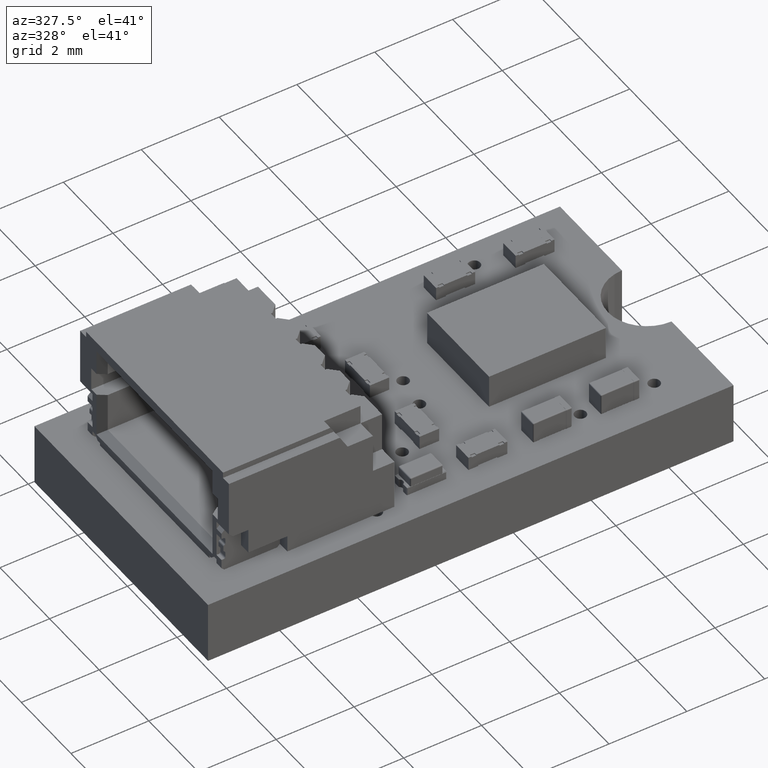
[diagram: clean part render]
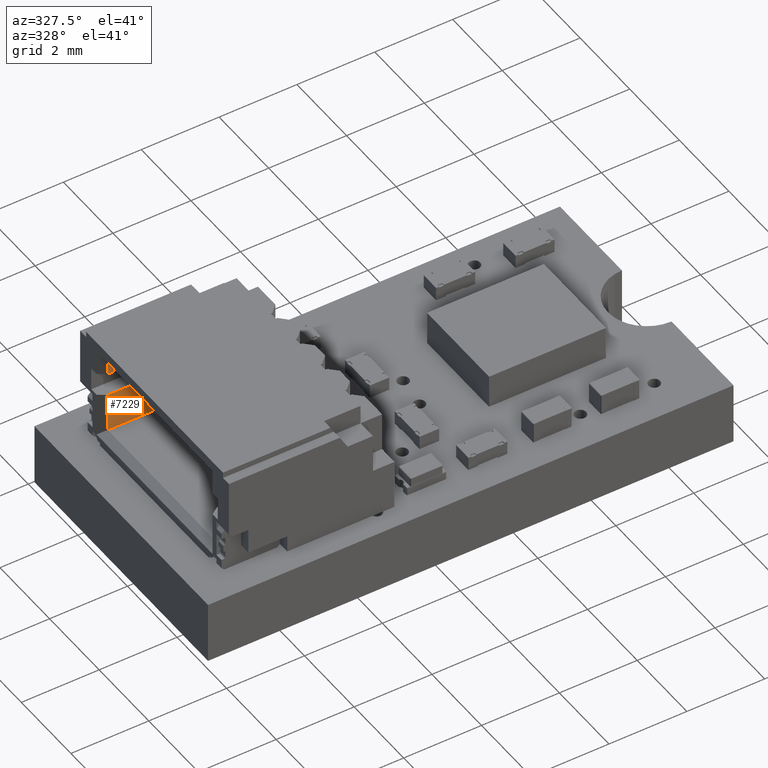
[diagram: same view with one face highlighted and labeled with its STEP entity id]
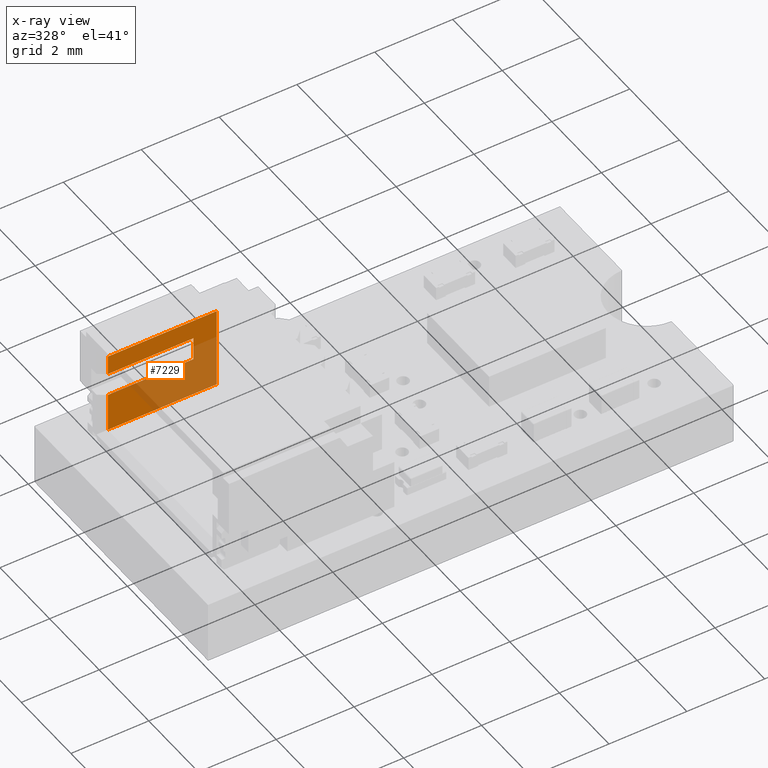
[diagram: x-ray of the same camera — body ghosted, the highlighted face saturated]
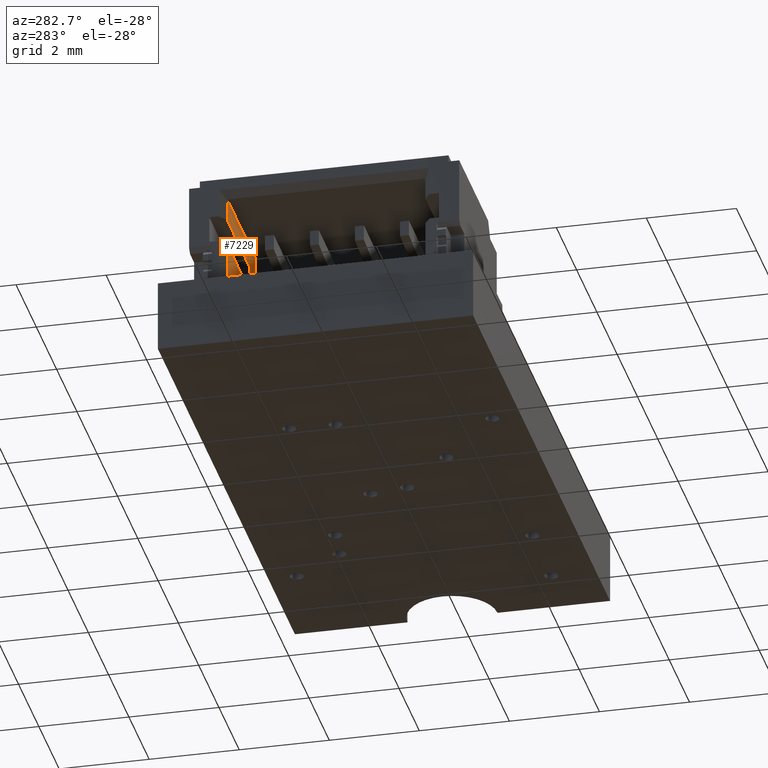
[diagram: same view with one face highlighted and labeled with its STEP entity id]
A machine part, auxiliary view. The second image highlights one B-rep face of the part: STEP entity #7229.
The next image is the same camera in x-ray: the body ghosted, the highlighted face saturated — about 47% of this face is hidden behind the body in this view.
A second angle (auxiliary view) of the same face is appended — the face is thin or edge-on in the first view.
In plain terms, the highlighted planar face has unit normal (-0, 1, -0).
Its self-contained STEP definition (entity closure, byte-faithful):
#5997 = VERTEX_POINT('',#5998);
#5998 = CARTESIAN_POINT('',(-2.2,0.755,0.895));
#6015 = VERTEX_POINT('',#6016);
#6016 = CARTESIAN_POINT('',(-2.2,2.855,0.895));
#6022 = EDGE_CURVE('',#6015,#5997,#6023,.T.);
#6023 = LINE('',#6024,#6025);
#6024 = CARTESIAN_POINT('',(-2.2,2.855,0.895));
#6025 = VECTOR('',#6026,1.);
#6026 = DIRECTION('',(3.562798913235E-31,-1.,-2.524246336172E-45));
#6173 = VERTEX_POINT('',#6174);
#6174 = CARTESIAN_POINT('',(-2.2,0.755,3.695));
#6189 = EDGE_CURVE('',#6173,#5997,#6190,.T.);
#6190 = LINE('',#6191,#6192);
#6191 = CARTESIAN_POINT('',(-2.2,0.755,0.895));
#6192 = VECTOR('',#6193,1.);
#6193 = DIRECTION('',(0.,3.491483361109E-15,-1.));
#6213 = VERTEX_POINT('',#6214);
#6214 = CARTESIAN_POINT('',(-2.2,2.855,3.695));
#6220 = EDGE_CURVE('',#6015,#6213,#6221,.T.);
#6221 = LINE('',#6222,#6223);
#6222 = CARTESIAN_POINT('',(-2.2,2.855,0.895));
#6223 = VECTOR('',#6224,1.);
#6224 = DIRECTION('',(0.,-3.491483361109E-15,1.));
#7229 = ADVANCED_FACE('',(#7230),#7273,.F.);
#7230 = FACE_BOUND('',#7231,.T.);
#7231 = EDGE_LOOP('',(#7232,#7242,#7248,#7249,#7250,#7251,#7259,#7267));
#7232 = ORIENTED_EDGE('',*,*,#7233,.F.);
#7233 = EDGE_CURVE('',#7234,#7236,#7238,.T.);
#7234 = VERTEX_POINT('',#7235);
#7235 = CARTESIAN_POINT('',(-2.2,1.755,3.695));
#7236 = VERTEX_POINT('',#7237);
#7237 = CARTESIAN_POINT('',(-2.2,1.755,1.495));
#7238 = LINE('',#7239,#7240);
#7239 = CARTESIAN_POINT('',(-2.2,1.755,0.895));
#7240 = VECTOR('',#7241,1.);
#7241 = DIRECTION('',(-7.085009279629E-15,-0.,-1.));
#7242 = ORIENTED_EDGE('',*,*,#7243,.T.);
#7243 = EDGE_CURVE('',#7234,#6173,#7244,.T.);
#7244 = LINE('',#7245,#7246);
#7245 = CARTESIAN_POINT('',(-2.2,2.855,3.695));
#7246 = VECTOR('',#7247,1.);
#7247 = DIRECTION('',(-2.438091212181E-29,-1.,-3.491483361109E-15));
#7248 = ORIENTED_EDGE('',*,*,#6189,.T.);
#7249 = ORIENTED_EDGE('',*,*,#6022,.F.);
#7250 = ORIENTED_EDGE('',*,*,#6220,.T.);
#7251 = ORIENTED_EDGE('',*,*,#7252,.T.);
#7252 = EDGE_CURVE('',#6213,#7253,#7255,.T.);
#7253 = VERTEX_POINT('',#7254);
#7254 = CARTESIAN_POINT('',(-2.2,2.355,3.695));
#7255 = LINE('',#7256,#7257);
#7256 = CARTESIAN_POINT('',(-2.2,2.855,3.695));
#7257 = VECTOR('',#7258,1.);
#7258 = DIRECTION('',(-2.438091212181E-29,-1.,-3.491483361109E-15));
#7259 = ORIENTED_EDGE('',*,*,#7260,.F.);
#7260 = EDGE_CURVE('',#7261,#7253,#7263,.T.);
#7261 = VERTEX_POINT('',#7262);
#7262 = CARTESIAN_POINT('',(-2.2,2.355,1.495));
#7263 = LINE('',#7264,#7265);
#7264 = CARTESIAN_POINT('',(-2.2,2.355,0.895));
#7265 = VECTOR('',#7266,1.);
#7266 = DIRECTION('',(7.085009279629E-15,0.,1.));
#7267 = ORIENTED_EDGE('',*,*,#7268,.F.);
#7268 = EDGE_CURVE('',#7236,#7261,#7269,.T.);
#7269 = LINE('',#7270,#7271);
#7270 = CARTESIAN_POINT('',(-2.2,2.855,1.495));
#7271 = VECTOR('',#7272,1.);
#7272 = DIRECTION('',(-3.562798913235E-31,1.,2.524246336172E-45));
#7273 = PLANE('',#7274);
#7274 = AXIS2_PLACEMENT_3D('',#7275,#7276,#7277);
#7275 = CARTESIAN_POINT('',(-2.2,2.855,0.895));
#7276 = DIRECTION('',(-1.,-3.562798913235E-31,7.085009279629E-15));
#7277 = DIRECTION('',(7.085009279629E-15,0.,1.));